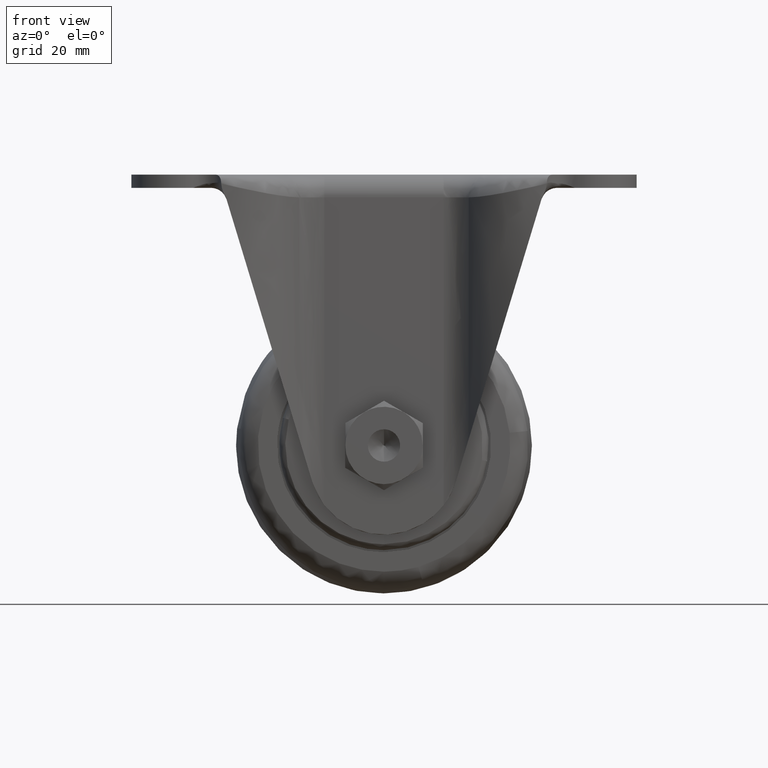
[diagram: clean part render]
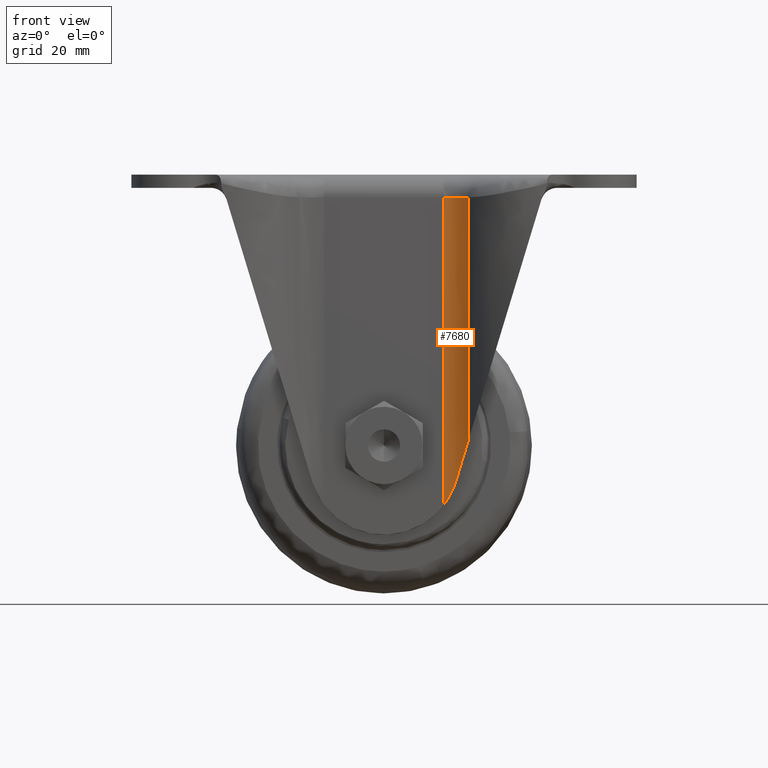
[diagram: same view with one face highlighted and labeled with its STEP entity id]
A machine part, front view. The second image highlights one B-rep face of the part: STEP entity #7680.
In plain terms, the highlighted face is a freeform B-spline surface patch.
Its self-contained STEP definition (entity closure, byte-faithful):
#5496=CARTESIAN_POINT('',(18.622024761987252,-27.051020408163250,-5.0));
#5497=VERTEX_POINT('',#5496);
#5608=CARTESIAN_POINT('',(13.112529000000020,-24.0,-5.0));
#5609=VERTEX_POINT('',#5608);
#5623=CARTESIAN_POINT('',(18.622024761987230,-27.051020408163261,-5.0));
#5624=CARTESIAN_POINT('',(16.712066231165004,-23.999999810218664,-5.0));
#5625=CARTESIAN_POINT('',(13.112529000000020,-24.000000000000011,-5.0));
#5633=(BOUNDED_CURVE()B_SPLINE_CURVE(2,(#5623,#5624,#5625),.UNSPECIFIED.,.F.,.U.)CURVE()GEOMETRIC_REPRESENTATION_ITEM()QUASI_UNIFORM_CURVE()RATIONAL_B_SPLINE_CURVE((1.0,0.874817752508623,1.0))REPRESENTATION_ITEM(''));
#5634=EDGE_CURVE('',#5497,#5609,#5633,.T.);
#7351=CARTESIAN_POINT('',(15.788895217503899,-24.576566392352198,-67.391547508985795));
#7352=VERTEX_POINT('',#7351);
#7358=CARTESIAN_POINT('',(13.112529000000640,-23.999999999999648,-72.615372927514002));
#7359=VERTEX_POINT('',#7358);
#7360=CARTESIAN_POINT('',(13.112529000000640,-23.999999999999648,-72.615372927514002));
#7361=CARTESIAN_POINT('',(13.187863853570390,-23.999999996028080,-72.516743419293974));
#7362=CARTESIAN_POINT('',(13.262215869515879,-24.001309295212039,-72.417093991248777));
#7363=CARTESIAN_POINT('',(13.408920880622400,-24.006346252758998,-72.215748706625263));
#7364=CARTESIAN_POINT('',(13.481241240812251,-24.010077148396942,-72.114088519579838));
#7365=CARTESIAN_POINT('',(13.693881770650920,-24.024490932074659,-71.807919695346229));
#7366=CARTESIAN_POINT('',(13.830344241214171,-24.038398676431751,-71.601601097226251));
#7367=CARTESIAN_POINT('',(14.224366297961581,-24.090318404322339,-70.975983953073708));
#7368=CARTESIAN_POINT('',(14.466604605985880,-24.138464899944061,-70.550039371634043));
#7369=CARTESIAN_POINT('',(14.911805262789690,-24.249779618983339,-69.679842970081879));
#7370=CARTESIAN_POINT('',(15.114762114710460,-24.312997303663771,-69.235594077345326));
#7371=CARTESIAN_POINT('',(15.389916219712200,-24.411240387248320,-68.554670149793722));
#7372=CARTESIAN_POINT('',(15.476743975226221,-24.444564276245469,-68.325266046356575));
#7373=CARTESIAN_POINT('',(15.640526879065540,-24.511090158525931,-67.861404224013810));
#7374=CARTESIAN_POINT('',(15.717526208667611,-24.544319963605041,-67.626709980219829));
#7375=CARTESIAN_POINT('',(15.788895217503910,-24.576566392352230,-67.391547508985809));
#7376=B_SPLINE_CURVE_WITH_KNOTS('',3,(#7360,#7361,#7362,#7363,#7364,#7365,#7366,#7367,#7368,#7369,#7370,#7371,#7372,#7373,#7374,#7375),.UNSPECIFIED.,.F.,.U.,(4,2,2,2,2,2,2,4),(0.0,0.062499999999997,0.124999999999995,0.249999999999996,0.499999999999997,0.749999999999998,0.874999999999999,1.0),.UNSPECIFIED.);
#7377=EDGE_CURVE('',#7359,#7352,#7376,.T.);
#7543=CARTESIAN_POINT('',(18.622024761987252,-27.051020408163250,-58.056322656207499));
#7544=VERTEX_POINT('',#7543);
#7558=CARTESIAN_POINT('',(18.622024761987230,-27.051020408163250,-58.056322656207499));
#7559=CARTESIAN_POINT('',(17.579453785657449,-25.385588686861947,-61.491617208117603));
#7560=CARTESIAN_POINT('',(15.788895217503891,-24.576566392352230,-67.391547508985795));
#7568=(BOUNDED_CURVE()B_SPLINE_CURVE(2,(#7558,#7559,#7560),.UNSPECIFIED.,.F.,.U.)CURVE()GEOMETRIC_REPRESENTATION_ITEM()QUASI_UNIFORM_CURVE()RATIONAL_B_SPLINE_CURVE((1.0,0.957222480701861,1.0))REPRESENTATION_ITEM(''));
#7569=EDGE_CURVE('',#7544,#7352,#7568,.T.);
#7646=CARTESIAN_POINT('',(18.622024761987252,-27.051020408163250,-58.056322656207499));
#7647=CARTESIAN_POINT('',(18.622024761987252,-27.051020408163250,-5.0));
#7648=QUASI_UNIFORM_CURVE('',1,(#7646,#7647),.UNSPECIFIED.,.F.,.U.);
#7649=EDGE_CURVE('',#7544,#5497,#7648,.T.);
#7655=CARTESIAN_POINT('',(12.829002982452140,-24.006186574666479,-74.305757250701859));
#7656=CARTESIAN_POINT('',(12.829002982452140,-24.006186574666479,-3.267356068732454));
#7657=CARTESIAN_POINT('',(16.808416967530192,-23.832441397645187,-74.305757250701859));
#7658=CARTESIAN_POINT('',(16.808416967530192,-23.832441397645187,-3.267356068732454));
#7659=CARTESIAN_POINT('',(18.769841197558549,-27.299246561052922,-74.305757250701859));
#7660=CARTESIAN_POINT('',(18.769841197558549,-27.299246561052922,-3.267356068732454));
#7668=(BOUNDED_SURFACE()B_SPLINE_SURFACE(1,2,((#7655,#7657,#7659),(#7656,#7658,#7660)),.UNSPECIFIED.,.F.,.F.,.U.)B_SPLINE_SURFACE_WITH_KNOTS((2,2),(3,3),(0.0,71.038401181969405),(0.0,7.332758375855970),.UNSPECIFIED.)GEOMETRIC_REPRESENTATION_ITEM()RATIONAL_B_SPLINE_SURFACE(((1.0,0.852640164354093,1.0),(1.0,0.852640164354093,1.0)))REPRESENTATION_ITEM('')SURFACE());
#7669=ORIENTED_EDGE('',*,*,#7649,.T.);
#7670=ORIENTED_EDGE('',*,*,#5634,.T.);
#7671=CARTESIAN_POINT('',(13.112529000000640,-23.999999999999648,-72.615372927514002));
#7672=CARTESIAN_POINT('',(13.112529000000020,-24.0,-5.0));
#7673=QUASI_UNIFORM_CURVE('',1,(#7671,#7672),.UNSPECIFIED.,.F.,.U.);
#7674=EDGE_CURVE('',#7359,#5609,#7673,.T.);
#7675=ORIENTED_EDGE('',*,*,#7674,.F.);
#7676=ORIENTED_EDGE('',*,*,#7377,.T.);
#7677=ORIENTED_EDGE('',*,*,#7569,.F.);
#7678=EDGE_LOOP('',(#7669,#7670,#7675,#7676,#7677));
#7679=FACE_OUTER_BOUND('',#7678,.T.);
#7680=ADVANCED_FACE('',(#7679),#7668,.F.);